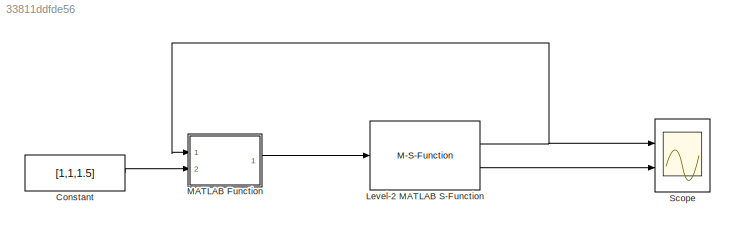
MODEL slx_33811ddfde56
KIND model
CONFIG AbsTol = auto
CONFIG FixedStep = auto
CONFIG MaxStep = auto
CONFIG MinStep = auto
CONFIG RelTol = 1e-3
CONFIG SampleTimeConstraint = Unconstrained
CONFIG Solver = VariableStepAuto
CONFIG SolverMode = Auto
CONFIG SolverName = VariableStepAuto
CONFIG StartTime = 0.0
CONFIG StopTime = 20
BLOCK [Constant] Constant
  Value = [1,1,1.5]
BLOCK [M-S-Function] Level-2 MATLAB S-Function
  FunctionName = killing_babycats
  Parameters = [4,0.5]
  Ports = [1, 2]
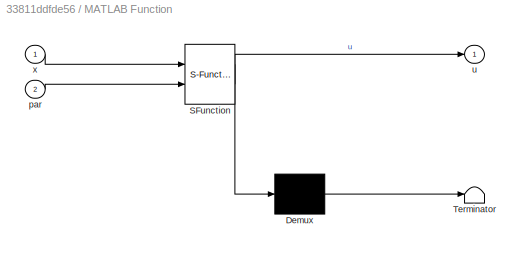
BLOCK [SubSystem] MATLAB Function
  ErrorFcn = Stateflow.Translate.translate
  PermitHierarchicalResolution = ExplicitOnly
  Ports = [2, 1]
  RequestExecContextInheritance = off
  SFBlockType = MATLAB Function
  TreatAsAtomicUnit = on
  Variant = off
BLOCK [Demux] MATLAB Function/ Demux 
  Outputs = 1
  Ports = [1, 1]
BLOCK [S-Function] MATLAB Function/ SFunction 
  EnableBusSupport = on
  FunctionName = sf_sfun
  PortCounts = [2 2]
  Ports = [2, 2]
  SFunctionDeploymentMode = off
  Tag = Stateflow S-Function Regler 2
BLOCK [Terminator] MATLAB Function/ Terminator 
BLOCK [Inport] MATLAB Function/par
  IconDisplay = Port number
  Port = 2
BLOCK [Outport] MATLAB Function/u
  IconDisplay = Port number
BLOCK [Inport] MATLAB Function/x
  IconDisplay = Port number
BLOCK [Scope] Scope
  NumInputPorts = 2
  Ports = [2]
  ScopeSpecificationString = Simulink.scopes.TimeScopeBlockCfg('CurrentConfiguration', extmgr.ConfigurationSet(extmgr.Configuration('Core','General UI',true),extmgr.Configuration('Core','Source UI',true),extmgr.Configuration('Sources','WiredSimulink',true),extmgr.Configuration('Visuals','Time Domain',true,'SerializedDisplays',{struct('MinYLimReal','1.49882','MaxYLimReal','1.50047','YLabelReal','','MinYLimMag','1.49882','MaxYL...<+2105ch>
LINE Constant:1 -> MATLAB Function:2
NET Level-2 MATLAB S-Function:1 -> MATLAB Function:1, Scope:1
LINE Level-2 MATLAB S-Function:2 -> Scope:2
LINE MATLAB Function:1 -> Level-2 MATLAB S-Function:1
note: NET lines group one-source signal fan-out (src -> all destinations, sorted); 1:1 wires keep LINE
CHART MATLAB Function states=1 transitions=1
  STATE_LABEL 'eML_blk_kernel()'
  STATE_LABEL 'SCRIPT:\nfunction u = Regler(x,par)\n\n%c1=0.5;\n%c2=10;\n\nc1 = 0.5;\nc2 = 10;\nx1_soll=1.5;\n\nx1=x(1);\nx2=x(2);\n\n\n\nalpha = 1 - c1*(x1-x1_soll)/x1;\ndalphadx = -c1*x1_soll/x1^2;\ng2 = x2;\nf2 = x2-x1*x2;\ng1 = x1;\nf1 = -x1;\n\n%alte Lösung (falsch, aber funktioniert)\n%u=1/x2*(x2*x1-x2-c1*(x2+c1*(x1-x1_soll)/x1-1));\n%u = 1/g2 * (-f2 - c2*(x2-alpha));\n\n%Lösungen stimmen eh überein hab ich vorher gemerkt ^^\n%Lösun...<+185ch>'
